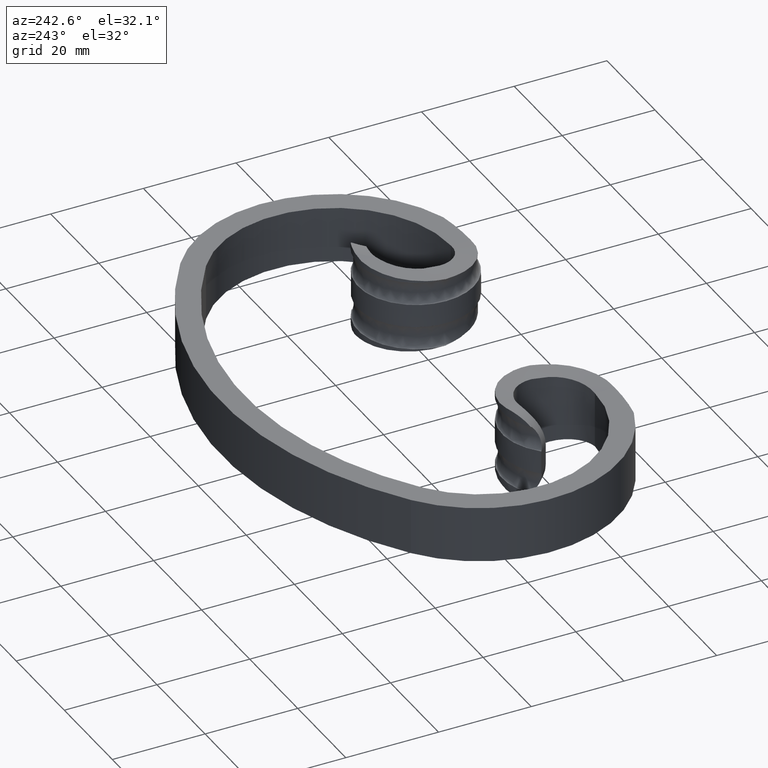
[diagram: clean part render]
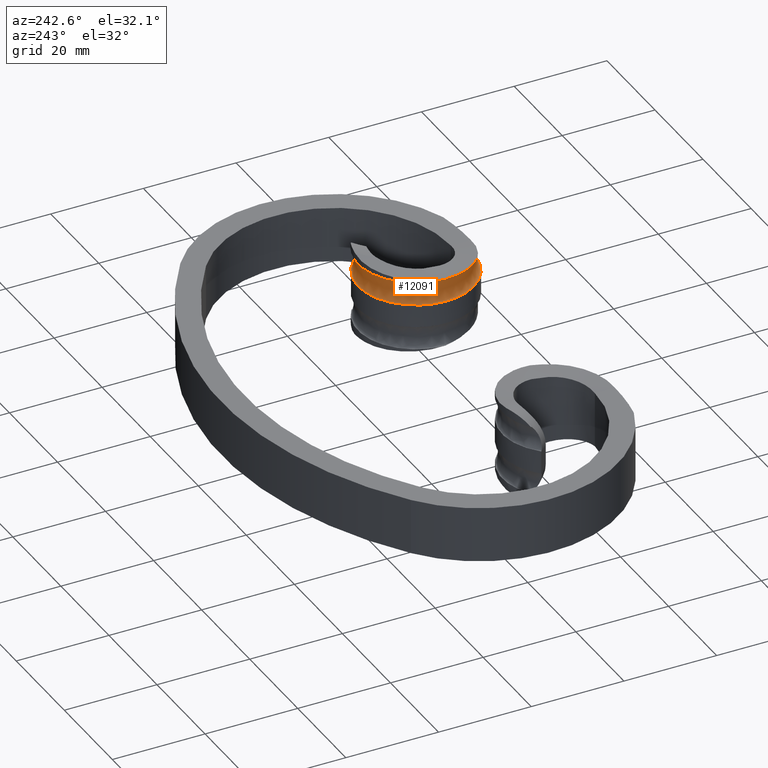
[diagram: same view with one face highlighted and labeled with its STEP entity id]
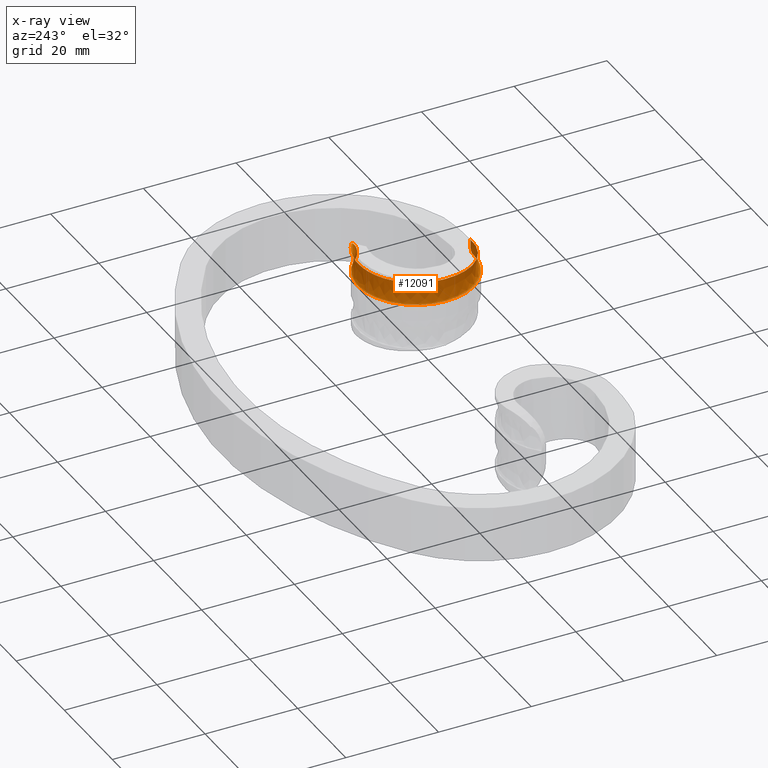
[diagram: x-ray of the same camera — body ghosted, the highlighted face saturated]
A machine part, auxiliary view. The second image highlights one B-rep face of the part: STEP entity #12091.
The next image is the same camera in x-ray: the body ghosted, the highlighted face saturated — about 0% of this face is hidden behind the body in this view.
In plain terms, the highlighted face is a freeform B-spline surface patch.
Its self-contained STEP definition (entity closure, byte-faithful):
#32 = CARTESIAN_POINT ( 'NONE',  ( 38.41920902640650581, -15.30948046978020827, 7.499999999999996447 ) ) ;
#52 = CARTESIAN_POINT ( 'NONE',  ( 38.14622152760183837, -15.06842391478881993, 2.500000000000001332 ) ) ;
#89 = CARTESIAN_POINT ( 'NONE',  ( 35.21141932246656125, -12.77744201039837613, 2.500000000000001332 ) ) ;
#91 = CARTESIAN_POINT ( 'NONE',  ( 33.37332900419551152, -8.814161855558658942, 7.500000000000006217 ) ) ;
#109 = CARTESIAN_POINT ( 'NONE',  ( 21.32860073688358682, -31.54682436965066472, 2.500000000000005773 ) ) ;
#142 = CARTESIAN_POINT ( 'NONE',  ( 35.18553422939550757, -11.08771656686601759, 7.500000000000001776 ) ) ;
#193 = CARTESIAN_POINT ( 'NONE',  ( 29.05313652752883158, -8.495860307255902910, 7.500000000000006217 ) ) ;
#239 = CARTESIAN_POINT ( 'NONE',  ( 36.02249857823497337, -11.51155021889983665, 7.500000000000001776 ) ) ;
#291 = CARTESIAN_POINT ( 'NONE',  ( 23.65607561865076036, -33.31722239589347367, 7.500000000000001776 ) ) ;
#333 = CARTESIAN_POINT ( 'NONE',  ( 16.10877146973381713, -24.50440747149691845, 7.500000000000006217 ) ) ;
#336 = CARTESIAN_POINT ( 'NONE',  ( 21.94561007754839466, -12.92224216963278138, 7.500000000755926877 ) ) ;
#391 = CARTESIAN_POINT ( 'NONE',  ( 16.62160407204991230, -18.25470029576864306, 2.500000000000009770 ) ) ;
#417 = CARTESIAN_POINT ( 'NONE',  ( 38.53905556756766515, -14.13880037893996366, 3.279253250524768237 ) ) ;
#440 = CARTESIAN_POINT ( 'NONE',  ( 21.86280024817728673, -33.94279313599651005, 2.500000000000009770 ) ) ;
#442 = CARTESIAN_POINT ( 'NONE',  ( 18.12853473525423453, -18.54627177066897659, 7.499999985115494816 ) ) ;
#489 = CARTESIAN_POINT ( 'NONE',  ( 18.09419209871169798, -18.55717586293394206, 2.500000022971900826 ) ) ;
#499 = CARTESIAN_POINT ( 'NONE',  ( 23.11864111962347579, -10.27320869311665774, 2.500000000000009770 ) ) ;
#551 = CARTESIAN_POINT ( 'NONE',  ( 19.77008966083842978, -26.63511795071257637, 7.499999999999996447 ) ) ;
#554 = CARTESIAN_POINT ( 'NONE',  ( 27.80448399603576703, -36.33185303286985146, 7.500000000000006217 ) ) ;
#600 = CARTESIAN_POINT ( 'NONE',  ( 17.89905848581266667, -25.67404979609122151, 2.499999999623299995 ) ) ;
#609 = CARTESIAN_POINT ( 'NONE',  ( 19.18525494613443527, -16.14910606491155676, 2.500000000000005773 ) ) ;
#631 = CARTESIAN_POINT ( 'NONE',  ( 17.63591395872200707, -22.96605085467229657, 7.464027147455925437 ) ) ;
#649 = CARTESIAN_POINT ( 'NONE',  ( 24.53156503241426734, -33.75231059033578873, 2.499999994784080304 ) ) ;
#661 = CARTESIAN_POINT ( 'NONE',  ( 35.18553422939552178, -11.08771656686680984, 2.500000000000005773 ) ) ;
#687 = CARTESIAN_POINT ( 'NONE',  ( 29.20734133652713638, -34.31818550070126861, 6.063039857513026654 ) ) ;
#702 = CARTESIAN_POINT ( 'NONE',  ( 35.66985910264742188, -11.34902509100770018, 2.500001718754357949 ) ) ;
#712 = CARTESIAN_POINT ( 'NONE',  ( 37.19806039891240346, -12.26979295539505621, 2.500000000000005773 ) ) ;
#715 = CARTESIAN_POINT ( 'NONE',  ( 37.12918128107770599, -12.22680497749369266, 7.499989036163373868 ) ) ;
#827 = CARTESIAN_POINT ( 'NONE',  ( 39.47603676172687415, -14.24494880356694715, 2.500000000000005773 ) ) ;
#1127 = CARTESIAN_POINT ( 'NONE',  ( 28.03939288901910842, -33.33340490741996121, 2.500000000000001332 ) ) ;
#1191 = CARTESIAN_POINT ( 'NONE',  ( 19.00497277699126641, -23.41802197244923889, 7.499999999999996447 ) ) ;
#1212 = EDGE_CURVE ( 'NONE', #11409, #15979, #16007, .T. ) ;
#1251 = CARTESIAN_POINT ( 'NONE',  ( 28.44423692930578440, -33.39875460711265731, 2.500000000000001332 ) ) ;
#1269 = CARTESIAN_POINT ( 'NONE',  ( 17.50074889960704638, -23.43622383549060118, 2.500000000000005773 ) ) ;
#1303 = CARTESIAN_POINT ( 'NONE',  ( 32.48445153610369118, -11.70158185510717708, 7.499999999999996447 ) ) ;
#1325 = CARTESIAN_POINT ( 'NONE',  ( 17.60765207413815503, -24.37739225783802510, 2.500000000000005773 ) ) ;
#1361 = CARTESIAN_POINT ( 'NONE',  ( 19.10653267854253201, -24.25037704417913176, 7.499999999999996447 ) ) ;
#1365 = CARTESIAN_POINT ( 'NONE',  ( 39.47603676172685994, -14.24494880356695781, 7.500000000000001776 ) ) ;
#1379 = CARTESIAN_POINT ( 'NONE',  ( 25.40806221898915851, -10.83636635586924335, 2.500000000000005773 ) ) ;
#1418 = CARTESIAN_POINT ( 'NONE',  ( 40.78323529348111975, -13.39474440866036886, 7.500000000000006217 ) ) ;
#1446 = VERTEX_POINT ( 'NONE', #8817 ) ;
#1469 = CARTESIAN_POINT ( 'NONE',  ( 17.50074889960706059, -23.43622383549385546, 7.500000000000001776 ) ) ;
#1524 = CARTESIAN_POINT ( 'NONE',  ( 40.53286449704720695, -13.18041713735370912, 7.500000000000006217 ) ) ;
#1581 = CARTESIAN_POINT ( 'NONE',  ( 23.77808003668876324, -11.62438683739830125, 7.500000000000001776 ) ) ;
#1587 =( BOUNDED_SURFACE ( )  B_SPLINE_SURFACE ( 3, 3, ( 
 ( #10070, #2454, #14996, #11338, #12640, #15182, #8615, #14018, #7726, #5191, #15353, #6409, #14131, #15398, #1379, #12867, #8964, #7604, #7793, #3875, #3927, #6353, #2679, #16498, #6468, #1269, #1325, #15244, #5135, #12815, #14077, #7668, #109, #9020, #8907, #10190, #11578, #10299, #11456, #2566, #3820, #12762 ),
 ( #15294, #5078, #52, #10246, #2627, #11512, #11258, #89, #7463, #16423, #10113, #3625, #12800, #8944, #10171, #4890, #13948, #2494, #10055, #2436, #7648, #5009, #2548, #11441, #16363, #8774, #15100, #5061, #3801, #15164, #13886, #11380, #14059, #15278, #16479, #7585, #3747, #1127, #1251, #6388, #12682, #12742 ),
 ( #12564, #32, #11316, #13831, #8889, #9002, #3684, #12624, #14002, #1303, #4952, #6333, #2610, #6153, #3859, #6274, #10229, #15226, #11499, #5117, #6219, #7523, #15336, #8833, #7709, #1191, #1361, #2372, #551, #16280, #10315, #7073, #14352, #8776, #2871, #13004, #10333, #13060, #12954, #2666, #7878, #10435 ),
 ( #6496, #1365, #2767, #15488, #7777, #4019, #15437, #239, #142, #4120, #2721, #15384, #7825, #10289, #3969, #1581, #11772, #14115, #5284, #14226, #9115, #9063, #2822, #11561, #11664, #1469, #11612, #11713, #4072, #6607, #5335, #15544, #3916, #10380, #291, #10481, #12854, #6553, #7713, #14277, #12904, #9169 ),
 ( #1418, #1524, #5179, #7928, #9224, #5389, #6392, #15339, #6454, #91, #5228, #193, #14173, #9007, #1851, #9280, #13260, #4273, #8202, #1745, #8040, #10747, #6782, #6837, #9499, #12040, #333, #11874, #3020, #10529, #5545, #6664, #6892, #5599, #10687, #6724, #3075, #5489, #554, #14485, #15753, #13317 ),
 ( #15592, #1634, #3127, #1695, #1803, #11981, #8150, #7986, #4374, #2917, #4224, #14430, #11824, #14324, #4326, #499, #4175, #9390, #15697, #5438, #13106, #13207, #391, #14375, #15646, #13157, #9336, #10581, #2968, #9440, #8098, #14537, #15809, #440, #10639, #11930, #16050, #5756, #15848, #4647, #2016, #7155 ),
 ( #6947, #827, #9546, #13424, #9756, #9651, #712, #10901, #661, #4536, #3284, #5654, #2122, #16001, #15950, #8257, #14588, #3393, #4482, #14688, #609, #1904, #11008, #9597, #9701, #2068, #5808, #10795, #12309, #3179, #3232, #7047, #12090, #8474, #12256, #13471, #4434, #12200, #8360, #13368, #5706, #10955 ) ),
 .UNSPECIFIED., .T., .F., .T. ) 
 B_SPLINE_SURFACE_WITH_KNOTS ( ( 4, 3, 4 ),
 ( 4, 2, 2, 2, 2, 2, 2, 2, 2, 2, 2, 2, 2, 2, 2, 2, 2, 2, 2, 2, 4 ),
 ( 0.000000000000000000, 0.5000000000000000000, 1.000000000000000000 ),
 ( 0.000000000000000000, 0.01273185411757188183, 0.03072593135436971212, 0.04872000859116754068, 0.08487915861102858506, 0.1419138687499011953, 0.1781394512699913668, 0.2140461925043029290, 0.2471421102715926632, 0.2815892737302778670, 0.3189275007378699622, 0.3534319911821827698, 0.3875986615000148183, 0.4214799009710058497, 0.4554698563386933574, 0.4871461004091119373, 0.5206264397081099560, 0.5573198910170400477, 0.5917772430613232881, 0.6090450569411511861, 0.6263128708209791951 ),
 .UNSPECIFIED. ) 
 GEOMETRIC_REPRESENTATION_ITEM ( )  RATIONAL_B_SPLINE_SURFACE ( (
 ( 1.000000000000000000, 1.000000000000000000, 1.000000000000000000, 1.000000000000000000, 1.000000000000000000, 1.000000000000000000, 1.000000000000000000, 1.000000000000000000, 1.000000000000000000, 1.000000000000000000, 1.000000000000000000, 1.000000000000000000, 1.000000000000000000, 1.000000000000000000, 1.000000000000000000, 1.000000000000000000, 1.000000000000000000, 1.000000000000000000, 1.000000000000000000, 1.000000000000000000, 1.000000000000000000, 1.000000000000000000, 1.000000000000000000, 1.000000000000000000, 1.000000000000000000, 1.000000000000000000, 1.000000000000000000, 1.000000000000000000, 1.000000000000000000, 1.000000000000000000, 1.000000000000000000, 1.000000000000000000, 1.000000000000000000, 1.000000000000000000, 1.000000000000000000, 1.000000000000000000, 1.000000000000000000, 1.000000000000000000, 1.000000000000000000, 1.000000000000000000, 1.000000000000000000, 1.000000000000000000),
 ( 0.3333333333333333703, 0.3333333333333333703, 0.3333333333333333703, 0.3333333333333333703, 0.3333333333333333703, 0.3333333333333333703, 0.3333333333333333703, 0.3333333333333333703, 0.3333333333333333703, 0.3333333333333333703, 0.3333333333333333703, 0.3333333333333333703, 0.3333333333333333703, 0.3333333333333333703, 0.3333333333333333703, 0.3333333333333333703, 0.3333333333333333703, 0.3333333333333333703, 0.3333333333333333703, 0.3333333333333333703, 0.3333333333333333703, 0.3333333333333333703, 0.3333333333333333703, 0.3333333333333333703, 0.3333333333333333703, 0.3333333333333333703, 0.3333333333333333703, 0.3333333333333333703, 0.3333333333333333703, 0.3333333333333333703, 0.3333333333333333703, 0.3333333333333333703, 0.3333333333333333703, 0.3333333333333333703, 0.3333333333333333703, 0.3333333333333333703, 0.3333333333333333703, 0.3333333333333333703, 0.3333333333333333703, 0.3333333333333333703, 0.3333333333333333703, 0.3333333333333333703),
 ( 0.3333333333333333703, 0.3333333333333333703, 0.3333333333333333703, 0.3333333333333333703, 0.3333333333333333703, 0.3333333333333333703, 0.3333333333333333703, 0.3333333333333333703, 0.3333333333333333703, 0.3333333333333333703, 0.3333333333333333703, 0.3333333333333333703, 0.3333333333333333703, 0.3333333333333333703, 0.3333333333333333703, 0.3333333333333333703, 0.3333333333333333703, 0.3333333333333333703, 0.3333333333333333703, 0.3333333333333333703, 0.3333333333333333703, 0.3333333333333333703, 0.3333333333333333703, 0.3333333333333333703, 0.3333333333333333703, 0.3333333333333333703, 0.3333333333333333703, 0.3333333333333333703, 0.3333333333333333703, 0.3333333333333333703, 0.3333333333333333703, 0.3333333333333333703, 0.3333333333333333703, 0.3333333333333333703, 0.3333333333333333703, 0.3333333333333333703, 0.3333333333333333703, 0.3333333333333333703, 0.3333333333333333703, 0.3333333333333333703, 0.3333333333333333703, 0.3333333333333333703),
 ( 1.000000000000000000, 1.000000000000000000, 1.000000000000000000, 1.000000000000000000, 1.000000000000000000, 1.000000000000000000, 1.000000000000000000, 1.000000000000000000, 1.000000000000000000, 1.000000000000000000, 1.000000000000000000, 1.000000000000000000, 1.000000000000000000, 1.000000000000000000, 1.000000000000000000, 1.000000000000000000, 1.000000000000000000, 1.000000000000000000, 1.000000000000000000, 1.000000000000000000, 1.000000000000000000, 1.000000000000000000, 1.000000000000000000, 1.000000000000000000, 1.000000000000000000, 1.000000000000000000, 1.000000000000000000, 1.000000000000000000, 1.000000000000000000, 1.000000000000000000, 1.000000000000000000, 1.000000000000000000, 1.000000000000000000, 1.000000000000000000, 1.000000000000000000, 1.000000000000000000, 1.000000000000000000, 1.000000000000000000, 1.000000000000000000, 1.000000000000000000, 1.000000000000000000, 1.000000000000000000),
 ( 0.3333333333333333703, 0.3333333333333333703, 0.3333333333333333703, 0.3333333333333333703, 0.3333333333333333703, 0.3333333333333333703, 0.3333333333333333703, 0.3333333333333333703, 0.3333333333333333703, 0.3333333333333333703, 0.3333333333333333703, 0.3333333333333333703, 0.3333333333333333703, 0.3333333333333333703, 0.3333333333333333703, 0.3333333333333333703, 0.3333333333333333703, 0.3333333333333333703, 0.3333333333333333703, 0.3333333333333333703, 0.3333333333333333703, 0.3333333333333333703, 0.3333333333333333703, 0.3333333333333333703, 0.3333333333333333703, 0.3333333333333333703, 0.3333333333333333703, 0.3333333333333333703, 0.3333333333333333703, 0.3333333333333333703, 0.3333333333333333703, 0.3333333333333333703, 0.3333333333333333703, 0.3333333333333333703, 0.3333333333333333703, 0.3333333333333333703, 0.3333333333333333703, 0.3333333333333333703, 0.3333333333333333703, 0.3333333333333333703, 0.3333333333333333703, 0.3333333333333333703),
 ( 0.3333333333333333703, 0.3333333333333333703, 0.3333333333333333703, 0.3333333333333333703, 0.3333333333333333703, 0.3333333333333333703, 0.3333333333333333703, 0.3333333333333333703, 0.3333333333333333703, 0.3333333333333333703, 0.3333333333333333703, 0.3333333333333333703, 0.3333333333333333703, 0.3333333333333333703, 0.3333333333333333703, 0.3333333333333333703, 0.3333333333333333703, 0.3333333333333333703, 0.3333333333333333703, 0.3333333333333333703, 0.3333333333333333703, 0.3333333333333333703, 0.3333333333333333703, 0.3333333333333333703, 0.3333333333333333703, 0.3333333333333333703, 0.3333333333333333703, 0.3333333333333333703, 0.3333333333333333703, 0.3333333333333333703, 0.3333333333333333703, 0.3333333333333333703, 0.3333333333333333703, 0.3333333333333333703, 0.3333333333333333703, 0.3333333333333333703, 0.3333333333333333703, 0.3333333333333333703, 0.3333333333333333703, 0.3333333333333333703, 0.3333333333333333703, 0.3333333333333333703),
 ( 1.000000000000000000, 1.000000000000000000, 1.000000000000000000, 1.000000000000000000, 1.000000000000000000, 1.000000000000000000, 1.000000000000000000, 1.000000000000000000, 1.000000000000000000, 1.000000000000000000, 1.000000000000000000, 1.000000000000000000, 1.000000000000000000, 1.000000000000000000, 1.000000000000000000, 1.000000000000000000, 1.000000000000000000, 1.000000000000000000, 1.000000000000000000, 1.000000000000000000, 1.000000000000000000, 1.000000000000000000, 1.000000000000000000, 1.000000000000000000, 1.000000000000000000, 1.000000000000000000, 1.000000000000000000, 1.000000000000000000, 1.000000000000000000, 1.000000000000000000, 1.000000000000000000, 1.000000000000000000, 1.000000000000000000, 1.000000000000000000, 1.000000000000000000, 1.000000000000000000, 1.000000000000000000, 1.000000000000000000, 1.000000000000000000, 1.000000000000000000, 1.000000000000000000, 1.000000000000000000) ) ) 
 REPRESENTATION_ITEM ( '' )  SURFACE ( )  );
#1634 = CARTESIAN_POINT ( 'NONE',  ( 40.53286449704722827, -13.18041713735355103, 2.500000000000009770 ) ) ;
#1695 = CARTESIAN_POINT ( 'NONE',  ( 39.71016810445808431, -12.44677613040599518, 2.500000000000009770 ) ) ;
#1724 = CARTESIAN_POINT ( 'NONE',  ( 38.69431948619705253, -14.04456221934563764, 2.812781095735301662 ) ) ;
#1745 = CARTESIAN_POINT ( 'NONE',  ( 18.56009526369910745, -14.35968709768496332, 7.500000000000006217 ) ) ;
#1792 = CARTESIAN_POINT ( 'NONE',  ( 21.18831554561096198, -31.37847757325452847, 2.500000065520436188 ) ) ;
#1803 = CARTESIAN_POINT ( 'NONE',  ( 39.35998797951828720, -12.11516343703750920, 2.500000000000009770 ) ) ;
#1838 = CARTESIAN_POINT ( 'NONE',  ( 18.92579126440170967, -16.67808096403079432, 2.499999992731118947 ) ) ;
#1851 = CARTESIAN_POINT ( 'NONE',  ( 24.94696623297835458, -9.404654352995869715, 7.500000000000006217 ) ) ;
#1855 = CARTESIAN_POINT ( 'NONE',  ( 26.43491285794516443, -10.50456793412688228, 7.499999999468269785 ) ) ;
#1877 = CARTESIAN_POINT ( 'NONE',  ( 28.42137027010524619, -34.25059370786034663, 6.127003454747098843 ) ) ;
#1896 = CARTESIAN_POINT ( 'NONE',  ( 38.21120117477982348, -13.09211234946844193, 2.499998902005455825 ) ) ;
#1904 = CARTESIAN_POINT ( 'NONE',  ( 18.33888219529982067, -17.90031393025098438, 2.500000000000005773 ) ) ;
#1929 = CARTESIAN_POINT ( 'NONE',  ( 17.61926032209246173, -22.86842585859914223, 7.471599695792774831 ) ) ;
#1950 = CARTESIAN_POINT ( 'NONE',  ( 28.97219955448822404, -34.96618928236238588, 2.499999999999737987 ) ) ;
#2006 = CARTESIAN_POINT ( 'NONE',  ( 19.72994886740338671, -15.35732413793948226, 2.500000039846946187 ) ) ;
#2012 = CARTESIAN_POINT ( 'NONE',  ( 30.04711231172892738, -34.31423004579989566, 6.000000000000002665 ) ) ;
#2016 = CARTESIAN_POINT ( 'NONE',  ( 29.38748622901768215, -36.49227055416643850, 2.500000000000009770 ) ) ;
#2068 = CARTESIAN_POINT ( 'NONE',  ( 17.50074889960704638, -23.43622383549060118, 2.500000000000005773 ) ) ;
#2122 = CARTESIAN_POINT ( 'NONE',  ( 28.12831602485360349, -10.10364475599091350, 2.500000000000005773 ) ) ;
#2211 = CARTESIAN_POINT ( 'NONE',  ( 17.51258348519467489, -22.49999999999997868, 7.500000000000002665 ) ) ;
#2372 = CARTESIAN_POINT ( 'NONE',  ( 19.48787910873021190, -25.85562541432279815, 7.499999999999996447 ) ) ;
#2436 = CARTESIAN_POINT ( 'NONE',  ( 20.90735288962349614, -16.24302945072337323, 2.500000000000001332 ) ) ;
#2454 = CARTESIAN_POINT ( 'NONE',  ( 39.47603676172687415, -14.24494880356694715, 2.500000000000005773 ) ) ;
#2494 = CARTESIAN_POINT ( 'NONE',  ( 22.54926091258116472, -14.36132657342905183, 2.500000000000001332 ) ) ;
#2496 = EDGE_CURVE ( 'NONE', #7531, #1446, #15653, .T. ) ;
#2548 = CARTESIAN_POINT ( 'NONE',  ( 19.43224197536309461, -19.32725261766584168, 2.500000000000001332 ) ) ;
#2566 = CARTESIAN_POINT ( 'NONE',  ( 29.05399269329276279, -34.97089452839851020, 2.500000000000005773 ) ) ;
#2610 = CARTESIAN_POINT ( 'NONE',  ( 28.25403474967046336, -11.60281937849431522, 7.499999999999996447 ) ) ;
#2627 = CARTESIAN_POINT ( 'NONE',  ( 37.19786079592471140, -14.19704721203561171, 2.500000000000001332 ) ) ;
#2666 = CARTESIAN_POINT ( 'NONE',  ( 29.26448823489879558, -33.48469831830663423, 7.499999999999996447 ) ) ;
#2679 = CARTESIAN_POINT ( 'NONE',  ( 18.02692302370650168, -18.79097645671723882, 2.500000000000005773 ) ) ;
#2721 = CARTESIAN_POINT ( 'NONE',  ( 31.46806569686472344, -10.00009628966603081, 7.500000000000001776 ) ) ;
#2767 = CARTESIAN_POINT ( 'NONE',  ( 39.21234713257015869, -14.01316164514706131, 7.500000000000001776 ) ) ;
#2822 = CARTESIAN_POINT ( 'NONE',  ( 18.02692302370488164, -18.79097645672052508, 7.500000000000001776 ) ) ;
#2871 = CARTESIAN_POINT ( 'NONE',  ( 24.50162879342335387, -32.07218748877694736, 7.499999999999996447 ) ) ;
#2917 = CARTESIAN_POINT ( 'NONE',  ( 33.37332900420063453, -8.814161855558003467, 2.500000000000009770 ) ) ;
#2968 = CARTESIAN_POINT ( 'NONE',  ( 16.90674673392690863, -27.55771080284837282, 2.500000000000009770 ) ) ;
#2999 = CARTESIAN_POINT ( 'NONE',  ( 38.92087343659828491, -13.83587487022201223, 2.500000000000006217 ) ) ;
#3020 = CARTESIAN_POINT ( 'NONE',  ( 16.90674673392691574, -27.55771080284918284, 7.500000000000006217 ) ) ;
#3067 = CARTESIAN_POINT ( 'NONE',  ( 27.95254882945457453, -34.83990304430039942, 2.500000000000307310 ) ) ;
#3075 = CARTESIAN_POINT ( 'NONE',  ( 25.76580782789493540, -35.88074365128134247, 7.500000000000006217 ) ) ;
#3120 = CARTESIAN_POINT ( 'NONE',  ( 36.78195914027642743, -11.99855543618123832, 2.499999973767126793 ) ) ;
#3127 = CARTESIAN_POINT ( 'NONE',  ( 40.27847273753850743, -12.95789937550528492, 2.500000000000009770 ) ) ;
#3130 = CARTESIAN_POINT ( 'NONE',  ( 34.87367840477424608, -10.97441121167543088, 7.499999999828729891 ) ) ;
#3168 = CARTESIAN_POINT ( 'NONE',  ( 24.29773320807800374, -11.36544918635430967, 2.499999999966835862 ) ) ;
#3179 = CARTESIAN_POINT ( 'NONE',  ( 19.12712496699650444, -28.72640338397117077, 2.500000000000005773 ) ) ;
#3183 = CARTESIAN_POINT ( 'NONE',  ( 29.83445047028817143, -9.988011969830873582, 7.500000002750227601 ) ) ;
#3217 = CARTESIAN_POINT ( 'NONE',  ( 38.96694933718355713, -13.79116450565392249, 2.500000000000006661 ) ) ;
#3228 = CARTESIAN_POINT ( 'NONE',  ( 30.01567626226326979, -34.31414699491300979, 5.999999999999999112 ) ) ;
#3232 = CARTESIAN_POINT ( 'NONE',  ( 19.58971036994750037, -29.47444745300611046, 2.500000000000005773 ) ) ;
#3258 = CARTESIAN_POINT ( 'NONE',  ( 30.00000000000002132, -34.31406559033229087, 6.000000000000000000 ) ) ;
#3275 = CARTESIAN_POINT ( 'NONE',  ( 17.60144876365123423, -24.16032602887177561, 2.500000047059125929 ) ) ;
#3284 = CARTESIAN_POINT ( 'NONE',  ( 31.46806569686472344, -10.00009628966346398, 2.500000000000005773 ) ) ;
#3306 = CARTESIAN_POINT ( 'NONE',  ( 26.11102636311287029, -33.73457141058233333, 6.318299289609039526 ) ) ;
#3338 = CARTESIAN_POINT ( 'NONE',  ( 35.39662568447331381, -11.21088919615156954, 7.499998366613689349 ) ) ;
#3363 = CARTESIAN_POINT ( 'NONE',  ( 19.48689963748913812, -28.44602269144351681, 7.008696456641418493 ) ) ;
#3393 = CARTESIAN_POINT ( 'NONE',  ( 21.61655481322094374, -13.18131105506792622, 2.500000000000005773 ) ) ;
#3587 = CARTESIAN_POINT ( 'NONE',  ( 37.28329701670509877, -12.52287169289031787, 7.454983653631728657 ) ) ;
#3625 = CARTESIAN_POINT ( 'NONE',  ( 29.08198031913861570, -11.50401737602942198, 2.500000000000001332 ) ) ;
#3684 = CARTESIAN_POINT ( 'NONE',  ( 36.26465247424160765, -13.44508363411256902, 7.499999999999996447 ) ) ;
#3747 = CARTESIAN_POINT ( 'NONE',  ( 26.83574524456478372, -33.06918005922614867, 2.500000000000001332 ) ) ;
#3801 = CARTESIAN_POINT ( 'NONE',  ( 19.77008966083841912, -26.63511795071014276, 2.500000000000001332 ) ) ;
#3820 = CARTESIAN_POINT ( 'NONE',  ( 29.52398102155498094, -34.99811214160532558, 2.500000000000005773 ) ) ;
#3859 = CARTESIAN_POINT ( 'NONE',  ( 25.86915820499998020, -12.26807835873938046, 7.499999999999996447 ) ) ;
#3875 = CARTESIAN_POINT ( 'NONE',  ( 19.73372407666129291, -15.30135827420416916, 2.500000000000005773 ) ) ;
#3916 = CARTESIAN_POINT ( 'NONE',  ( 21.32860073688359748, -31.54682436965065051, 7.500000000000001776 ) ) ;
#3927 = CARTESIAN_POINT ( 'NONE',  ( 19.18525494613443527, -16.14910606491155676, 2.500000000000005773 ) ) ;
#3933 = FACE_OUTER_BOUND ( 'NONE', #16129, .T. ) ;
#3969 = CARTESIAN_POINT ( 'NONE',  ( 25.40806221898916206, -10.83636635586762687, 7.500000000000001776 ) ) ;
#4019 = CARTESIAN_POINT ( 'NONE',  ( 37.57030407590158205, -12.54947938865291412, 7.500000000000001776 ) ) ;
#4024 = ORIENTED_EDGE ( 'NONE', *, *, #7991, .T. ) ;
#4072 = CARTESIAN_POINT ( 'NONE',  ( 18.33841819738267986, -27.09641437678088494, 7.500000000000001776 ) ) ;
#4120 = CARTESIAN_POINT ( 'NONE',  ( 32.92889027014960845, -10.25787185533291535, 7.500000000000001776 ) ) ;
#4175 = CARTESIAN_POINT ( 'NONE',  ( 22.27906043452842511, -10.78243868297078656, 2.500000000000009770 ) ) ;
#4202 = CARTESIAN_POINT ( 'NONE',  ( 38.77585976069036633, -13.97340888724131425, 2.656231044897492399 ) ) ;
#4224 = CARTESIAN_POINT ( 'NONE',  ( 31.74041467732851629, -8.514595397399922660, 2.500000000000009770 ) ) ;
#4273 = CARTESIAN_POINT ( 'NONE',  ( 20.68384871386072987, -12.00129553670998206, 7.500000000000006217 ) ) ;
#4314 = CARTESIAN_POINT ( 'NONE',  ( 36.99760465579314683, -12.13867929829270054, 2.499999466456976904 ) ) ;
#4326 = CARTESIAN_POINT ( 'NONE',  ( 24.94696623297916460, -9.404654352997489752, 2.500000000000009770 ) ) ;
#4367 = CARTESIAN_POINT ( 'NONE',  ( 37.62011682865434636, -12.59652629089946707, 2.500000680204034431 ) ) ;
#4374 = CARTESIAN_POINT ( 'NONE',  ( 35.89648585841128181, -9.762069868856013244, 2.500000000000009770 ) ) ;
#4425 = CARTESIAN_POINT ( 'NONE',  ( 18.55223394646874624, -27.62295591593095523, 2.500000066268732279 ) ) ;
#4434 = CARTESIAN_POINT ( 'NONE',  ( 26.30077653622905132, -34.47496185525213264, 2.500000000000005773 ) ) ;
#4435 = CARTESIAN_POINT ( 'NONE',  ( 26.99156776056288010, -10.35220994611657552, 7.500000001265274996 ) ) ;
#4475 = CARTESIAN_POINT ( 'NONE',  ( 17.52195234949621394, -21.59345409719409048, 2.500000005963685101 ) ) ;
#4482 = CARTESIAN_POINT ( 'NONE',  ( 20.95543806386548624, -13.82316241234659770, 2.500000000000005773 ) ) ;
#4510 = CARTESIAN_POINT ( 'NONE',  ( 24.66720608073268650, -33.13320784480848147, 6.443857454250760952 ) ) ;
#4536 = CARTESIAN_POINT ( 'NONE',  ( 32.92889027014962267, -10.25787185533162571, 2.500000000000005773 ) ) ;
#4593 = CARTESIAN_POINT ( 'NONE',  ( 33.25898072233015057, -10.37660341252162866, 7.500000000336505934 ) ) ;
#4647 = CARTESIAN_POINT ( 'NONE',  ( 28.84349715168997008, -36.45709073849197068, 2.500000000000009770 ) ) ;
#4826 = CARTESIAN_POINT ( 'NONE',  ( 30.04104851945345800, -34.40249501091037843, 2.500000000000003997 ) ) ;
#4890 = CARTESIAN_POINT ( 'NONE',  ( 24.43751895375404715, -12.97556498167688943, 2.500000000000001332 ) ) ;
#4903 = CARTESIAN_POINT ( 'NONE',  ( 17.52129356851960296, -22.51198479162003707, 7.499083118262223735 ) ) ;
#4952 = CARTESIAN_POINT ( 'NONE',  ( 31.19571671640601451, -11.48559718193021695, 7.499999999999996447 ) ) ;
#5009 = CARTESIAN_POINT ( 'NONE',  ( 19.70094359973482412, -18.53902708544617894, 2.500000000000001332 ) ) ;
#5032 =( BOUNDED_CURVE ( )  B_SPLINE_CURVE ( 3, ( #5804, #3228, #5913, #2012 ),
 .UNSPECIFIED., .F., .T. ) 
 B_SPLINE_CURVE_WITH_KNOTS ( ( 4, 4 ),
 ( 6.938893903907228378E-18, 4.711259876130408000E-05 ),
 .UNSPECIFIED. ) 
 CURVE ( )  GEOMETRIC_REPRESENTATION_ITEM ( )  RATIONAL_B_SPLINE_CURVE ( ( 0.5217803813051999917, 0.5217803813051999917, 0.5217803813051999917, 0.5217803813051999917 ) ) 
 REPRESENTATION_ITEM ( '' )  );
#5061 = CARTESIAN_POINT ( 'NONE',  ( 19.48787910872612272, -25.85562541432442529, 2.500000000000001332 ) ) ;
#5078 = CARTESIAN_POINT ( 'NONE',  ( 38.41920902640652713, -15.30948046978034860, 2.500000000000001332 ) ) ;
#5117 = CARTESIAN_POINT ( 'NONE',  ( 20.90735288962350324, -16.24302945072338744, 7.499999999999996447 ) ) ;
#5135 = CARTESIAN_POINT ( 'NONE',  ( 18.33841819738265855, -27.09641437677926135, 2.500000000000005773 ) ) ;
#5179 = CARTESIAN_POINT ( 'NONE',  ( 40.27847273753849322, -12.95789937550529558, 7.500000000000006217 ) ) ;
#5191 = CARTESIAN_POINT ( 'NONE',  ( 32.92889027014962267, -10.25787185533162571, 2.500000000000005773 ) ) ;
#5228 = CARTESIAN_POINT ( 'NONE',  ( 31.74041467732342170, -8.514595397401846455, 7.500000000000006217 ) ) ;
#5284 = CARTESIAN_POINT ( 'NONE',  ( 20.95543806386550045, -13.82316241234661192, 7.500000000000001776 ) ) ;
#5335 = CARTESIAN_POINT ( 'NONE',  ( 19.58971036994449832, -29.47444745300760971, 7.500000000000001776 ) ) ;
#5383 = CARTESIAN_POINT ( 'NONE',  ( 38.58531895183962490, -13.44592564653456179, 2.500000000000006661 ) ) ;
#5389 = CARTESIAN_POINT ( 'NONE',  ( 38.58330654103089330, -11.44219238955007611, 7.500000000000006217 ) ) ;
#5438 = CARTESIAN_POINT ( 'NONE',  ( 18.56009526369909679, -14.35968709768494911, 2.500000000000009770 ) ) ;
#5440 = CARTESIAN_POINT ( 'NONE',  ( 21.10956425181225171, -13.69433125929911732, 7.499999999136917062 ) ) ;
#5468 = CARTESIAN_POINT ( 'NONE',  ( 38.08489786911691510, -14.00350635149753842, 4.946414002459348147 ) ) ;
#5489 = CARTESIAN_POINT ( 'NONE',  ( 27.29004424775603965, -36.24045617210580161, 7.500000000000006217 ) ) ;
#5517 = CARTESIAN_POINT ( 'NONE',  ( 38.28074666191422182, -14.13529916775300066, 4.236053546218343513 ) ) ;
#5545 = CARTESIAN_POINT ( 'NONE',  ( 18.28753359592842287, -30.22676346278174364, 7.500000000000006217 ) ) ;
#5590 = CARTESIAN_POINT ( 'NONE',  ( 30.00000000000000711, -35.00000000000000711, 2.500000000000005773 ) ) ;
#5599 = CARTESIAN_POINT ( 'NONE',  ( 21.86280024817730450, -33.94279313599390235, 7.500000000000006217 ) ) ;
#5646 = CARTESIAN_POINT ( 'NONE',  ( 25.95732801067190110, -34.33841531144719283, 2.500000000965635127 ) ) ;
#5654 = CARTESIAN_POINT ( 'NONE',  ( 29.06755842333210893, -9.999938841643256637, 2.500000000000005773 ) ) ;
#5694 = CARTESIAN_POINT ( 'NONE',  ( 17.50627830788823047, -23.13492792526169595, 2.500000014110377755 ) ) ;
#5706 = CARTESIAN_POINT ( 'NONE',  ( 29.52398102155498094, -34.99811214160532558, 2.500000000000005773 ) ) ;
#5756 = CARTESIAN_POINT ( 'NONE',  ( 27.29004424775684612, -36.24045617210745007, 2.500000000000009770 ) ) ;
#5804 = CARTESIAN_POINT ( 'NONE',  ( 30.00000000000002132, -34.31406559033229087, 6.000000000000000000 ) ) ;
#5808 = CARTESIAN_POINT ( 'NONE',  ( 17.60765207413815503, -24.37739225783802510, 2.500000000000005773 ) ) ;
#5811 = CARTESIAN_POINT ( 'NONE',  ( 37.35980459470660264, -12.39862694124577835, 7.499990137513146138 ) ) ;
#5837 = CARTESIAN_POINT ( 'NONE',  ( 17.68564140450749633, -23.25890370682646591, 7.441249790020598276 ) ) ;
#5867 = CARTESIAN_POINT ( 'NONE',  ( 36.89026405592221636, -12.06809398825163093, 7.500000011223647789 ) ) ;
#5913 = CARTESIAN_POINT ( 'NONE',  ( 30.03137999180284368, -34.31420178705655388, 5.999999999999999112 ) ) ;
#6066 = VERTEX_POINT ( 'NONE', #13028 ) ;
#6113 = CARTESIAN_POINT ( 'NONE',  ( 17.50000000000000355, -22.49999999999998224, 7.500000000000001776 ) ) ;
#6153 = CARTESIAN_POINT ( 'NONE',  ( 26.65075807585148127, -11.98518199567966391, 7.499999999999996447 ) ) ;
#6219 = CARTESIAN_POINT ( 'NONE',  ( 20.42968106670389261, -16.99575871723751774, 7.499999999999996447 ) ) ;
#6274 = CARTESIAN_POINT ( 'NONE',  ( 24.43751895375330108, -12.97556498167841355, 7.499999999999996447 ) ) ;
#6333 = CARTESIAN_POINT ( 'NONE',  ( 29.08198031913537562, -11.50401737602741647, 7.499999999999996447 ) ) ;
#6353 = CARTESIAN_POINT ( 'NONE',  ( 18.33888219529982067, -17.90031393025098438, 2.500000000000005773 ) ) ;
#6388 = CARTESIAN_POINT ( 'NONE',  ( 29.26448823489555195, -33.48469831830502841, 2.500000000000001332 ) ) ;
#6392 = CARTESIAN_POINT ( 'NONE',  ( 38.13146832358317795, -11.09450227667838185, 7.500000000000006217 ) ) ;
#6409 = CARTESIAN_POINT ( 'NONE',  ( 29.06755842333210893, -9.999938841643256637, 2.500000000000005773 ) ) ;
#6454 = CARTESIAN_POINT ( 'NONE',  ( 35.89648585841448636, -9.762069868855622445, 7.500000000000006217 ) ) ;
#6468 = CARTESIAN_POINT ( 'NONE',  ( 17.49924479132482347, -21.55588899254137658, 2.500000000000005773 ) ) ;
#6496 = CARTESIAN_POINT ( 'NONE',  ( 39.73398842150573529, -14.46669636730864106, 7.500000000000001776 ) ) ;
#6553 = CARTESIAN_POINT ( 'NONE',  ( 27.66471856838798615, -34.78693053976206784, 7.500000000000001776 ) ) ;
#6607 = CARTESIAN_POINT ( 'NONE',  ( 19.12712496699652576, -28.72640338396965376, 7.500000000000001776 ) ) ;
#6664 = CARTESIAN_POINT ( 'NONE',  ( 19.50914376405591710, -31.82309187604592537, 7.500000000000006217 ) ) ;
#6668 = CARTESIAN_POINT ( 'NONE',  ( 19.05058927984187989, -16.44175529875763075, 7.499999991271808497 ) ) ;
#6724 = CARTESIAN_POINT ( 'NONE',  ( 24.76956876614016778, -35.52638232582666689, 7.500000000000006217 ) ) ;
#6728 = CARTESIAN_POINT ( 'NONE',  ( 24.83717429876113769, -11.10252134673562985, 7.500000000145170986 ) ) ;
#6757 = CARTESIAN_POINT ( 'NONE',  ( 37.73517634381075680, -13.60643851158547868, 6.061474740719058119 ) ) ;
#6782 = CARTESIAN_POINT ( 'NONE',  ( 16.62160407204747514, -18.25470029577355291, 7.500000000000006217 ) ) ;
#6784 = CARTESIAN_POINT ( 'NONE',  ( 17.50000000000000355, -22.49999999999998224, 7.500000000000001776 ) ) ;
#6808 = CARTESIAN_POINT ( 'NONE',  ( 38.15132630832777494, -14.05842331032990522, 4.711409415087313590 ) ) ;
#6825 = CARTESIAN_POINT ( 'NONE',  ( 36.12514849625573987, -11.59434165828626995, 2.500000086775485908 ) ) ;
#6837 = CARTESIAN_POINT ( 'NONE',  ( 16.13865091681810782, -20.29581837494282937, 7.500000000000006217 ) ) ;
#6881 = CARTESIAN_POINT ( 'NONE',  ( 34.73879234661386306, -10.92103393319889015, 2.499999950242471236 ) ) ;
#6885 = CARTESIAN_POINT ( 'NONE',  ( 30.00000000000000711, -35.00000000000000711, 2.500000000000005773 ) ) ;
#6892 = CARTESIAN_POINT ( 'NONE',  ( 20.21999601227528487, -32.56312349886574964, 7.500000000000006217 ) ) ;
#6933 = CARTESIAN_POINT ( 'NONE',  ( 25.22138978776236229, -10.93859718934428393, 2.500000000042133408 ) ) ;
#6947 = CARTESIAN_POINT ( 'NONE',  ( 39.73398842150574950, -14.46669636730863040, 2.500000000000005773 ) ) ;
#6949 = CARTESIAN_POINT ( 'NONE',  ( 30.41090533511147243, -9.993627061987712779, 7.500000044346131212 ) ) ;
#6966 = CARTESIAN_POINT ( 'NONE',  ( 22.63677109292737910, -31.92170091743153648, 6.633683316053996748 ) ) ;
#6987 = CARTESIAN_POINT ( 'NONE',  ( 29.73106617790173090, -9.960646977675230218, 2.499999951795102149 ) ) ;
#7019 = CARTESIAN_POINT ( 'NONE',  ( 20.38281383386947354, -29.73206907938368460, 6.884252458813118203 ) ) ;
#7035 = CARTESIAN_POINT ( 'NONE',  ( 32.80428937869573502, -10.27505909006194074, 2.500000000389875243 ) ) ;
#7047 = CARTESIAN_POINT ( 'NONE',  ( 20.68678205458044062, -30.88704921089845001, 2.500000000000005773 ) ) ;
#7071 = CARTESIAN_POINT ( 'NONE',  ( 22.02649990739137564, -31.43221498560736649, 6.695890247336429901 ) ) ;
#7073 = CARTESIAN_POINT ( 'NONE',  ( 21.86442034511138033, -29.95100654574778432, 7.499999999999996447 ) ) ;
#7155 = CARTESIAN_POINT ( 'NONE',  ( 29.89719250730371769, -36.49647272592761027, 2.500000000000009770 ) ) ;
#7463 = CARTESIAN_POINT ( 'NONE',  ( 34.47458260037975464, -12.41336326487761355, 2.500000000000001332 ) ) ;
#7523 = CARTESIAN_POINT ( 'NONE',  ( 19.70094359973483478, -18.53902708545104971, 7.499999999999996447 ) ) ;
#7531 = VERTEX_POINT ( 'NONE', #6885 ) ;
#7585 = CARTESIAN_POINT ( 'NONE',  ( 26.04630173621220024, -32.80184250326482953, 2.500000000000001332 ) ) ;
#7602 = CARTESIAN_POINT ( 'NONE',  ( 37.33321774882279698, -12.86713977671646880, 7.146426398912670841 ) ) ;
#7604 = CARTESIAN_POINT ( 'NONE',  ( 21.61655481322094374, -13.18131105506792622, 2.500000000000005773 ) ) ;
#7648 = CARTESIAN_POINT ( 'NONE',  ( 20.42968106670387840, -16.99575871724276155, 2.500000000000001332 ) ) ;
#7668 = CARTESIAN_POINT ( 'NONE',  ( 20.68678205458044062, -30.88704921089845001, 2.500000000000005773 ) ) ;
#7709 = CARTESIAN_POINT ( 'NONE',  ( 18.98885097972755887, -21.76639910134410627, 7.499999999999996447 ) ) ;
#7713 = CARTESIAN_POINT ( 'NONE',  ( 28.12436046266915923, -34.86530381999043016, 7.500000000000001776 ) ) ;
#7726 = CARTESIAN_POINT ( 'NONE',  ( 35.18553422939552178, -11.08771656686680984, 2.500000000000005773 ) ) ;
#7777 = CARTESIAN_POINT ( 'NONE',  ( 38.27892438772149575, -13.15610532453697523, 7.500000000000001776 ) ) ;
#7793 = CARTESIAN_POINT ( 'NONE',  ( 20.95543806386548624, -13.82316241234659770, 2.500000000000005773 ) ) ;
#7825 = CARTESIAN_POINT ( 'NONE',  ( 28.12831602485360349, -10.10364475599093481, 7.500000000000001776 ) ) ;
#7878 = CARTESIAN_POINT ( 'NONE',  ( 29.66047581409229039, -33.50395372904419844, 7.499999999999996447 ) ) ;
#7928 = CARTESIAN_POINT ( 'NONE',  ( 39.71016810445807010, -12.44677613040600583, 7.500000000000006217 ) ) ;
#7986 = CARTESIAN_POINT ( 'NONE',  ( 36.83357783400342100, -10.24565842740289767, 2.500000000000009770 ) ) ;
#7991 = EDGE_CURVE ( 'NONE', #6066, #11409, #13099, .T. ) ;
#8040 = CARTESIAN_POINT ( 'NONE',  ( 17.94082882556500280, -15.30245341257158387, 7.500000000000006217 ) ) ;
#8044 = CARTESIAN_POINT ( 'NONE',  ( 25.35895095707278202, -10.87964908619698434, 7.499999999322837674 ) ) ;
#8073 = CARTESIAN_POINT ( 'NONE',  ( 38.65268428935507927, -14.07557803716067824, 2.926285484596348851 ) ) ;
#8098 = CARTESIAN_POINT ( 'NONE',  ( 18.28753359592992211, -30.22676346278024440, 2.500000000000009770 ) ) ;
#8139 = CARTESIAN_POINT ( 'NONE',  ( 18.04012565542391400, -26.17067152786526663, 2.500000072474158674 ) ) ;
#8150 = CARTESIAN_POINT ( 'NONE',  ( 38.13146832358157212, -11.09450227667796618, 2.500000000000009770 ) ) ;
#8194 = CARTESIAN_POINT ( 'NONE',  ( 23.18627349549347016, -32.99132638240786974, 2.500000002735879523 ) ) ;
#8202 = CARTESIAN_POINT ( 'NONE',  ( 19.93858023396535373, -12.71499137622621234, 7.500000000000006217 ) ) ;
#8248 = CARTESIAN_POINT ( 'NONE',  ( 22.98234537279968492, -12.14237141638561113, 2.500000001468179356 ) ) ;
#8257 = CARTESIAN_POINT ( 'NONE',  ( 23.77808003668875969, -11.62438683739677536, 2.500000000000005773 ) ) ;
#8282 = CARTESIAN_POINT ( 'NONE',  ( 17.71791476993909242, -23.45430243291891159, 7.425970349845224305 ) ) ;
#8298 = CARTESIAN_POINT ( 'NONE',  ( 23.62520040345176042, -33.26412033742130347, 2.500000011216717777 ) ) ;
#8348 = CARTESIAN_POINT ( 'NONE',  ( 23.84981439232580058, -11.60598973342661644, 2.500000001380759951 ) ) ;
#8360 = CARTESIAN_POINT ( 'NONE',  ( 28.12436046267077572, -34.86530381999045147, 2.500000000000005773 ) ) ;
#8436 = ORIENTED_EDGE ( 'NONE', *, *, #15515, .T. ) ;
#8474 = CARTESIAN_POINT ( 'NONE',  ( 22.80531725841389346, -32.76979810080144517, 2.500000000000005773 ) ) ;
#8613 = CARTESIAN_POINT ( 'NONE',  ( 17.55311940681530913, -22.57889160181010624, 7.493947909833972965 ) ) ;
#8615 = CARTESIAN_POINT ( 'NONE',  ( 37.19806039891240346, -12.26979295539505621, 2.500000000000005773 ) ) ;
#8674 = CARTESIAN_POINT ( 'NONE',  ( 37.27243661539316832, -12.60047688837723001, 7.402719401146803158 ) ) ;
#8706 = CARTESIAN_POINT ( 'NONE',  ( 30.00000000000000711, -35.00000000000000711, 2.500000000000005773 ) ) ;
#8732 = CARTESIAN_POINT ( 'NONE',  ( 37.35980459470660264, -12.39862694124577835, 7.499990137513146138 ) ) ;
#8774 = CARTESIAN_POINT ( 'NONE',  ( 19.00497277699043863, -23.41802197244436456, 2.500000000000001332 ) ) ;
#8776 = CARTESIAN_POINT ( 'NONE',  ( 23.74783426865052149, -31.59680306560897378, 7.499999999999996447 ) ) ;
#8789 = CARTESIAN_POINT ( 'NONE',  ( 37.33540957349470091, -12.41878629344564011, 7.500278688206481803 ) ) ;
#8817 = CARTESIAN_POINT ( 'NONE',  ( 30.04711231172893093, -34.31423004579989566, 6.000000000000002665 ) ) ;
#8833 = CARTESIAN_POINT ( 'NONE',  ( 19.07666020911455362, -20.94171308988109459, 7.499999999999996447 ) ) ;
#8889 = CARTESIAN_POINT ( 'NONE',  ( 37.19786079592469008, -14.19704721203582487, 7.499999999999996447 ) ) ;
#8899 = ORIENTED_EDGE ( 'NONE', *, *, #1212, .T. ) ;
#8907 = CARTESIAN_POINT ( 'NONE',  ( 23.65607561865074615, -33.31722239589348789, 2.500000000000005773 ) ) ;
#8944 = CARTESIAN_POINT ( 'NONE',  ( 26.65075807584986123, -11.98518199567883791, 2.500000000000001332 ) ) ;
#8964 = CARTESIAN_POINT ( 'NONE',  ( 23.03109236341684607, -12.08469567612873696, 2.500000000000005773 ) ) ;
#9002 = CARTESIAN_POINT ( 'NONE',  ( 36.55730161077224949, -13.65676638775575569, 7.499999999999996447 ) ) ;
#9007 = CARTESIAN_POINT ( 'NONE',  ( 25.94544282462677387, -9.060303370720040661, 7.500000000000006217 ) ) ;
#9020 = CARTESIAN_POINT ( 'NONE',  ( 22.80531725841389346, -32.76979810080144517, 2.500000000000005773 ) ) ;
#9057 = VERTEX_POINT ( 'NONE', #3217 ) ;
#9063 = CARTESIAN_POINT ( 'NONE',  ( 18.33888219529983488, -17.90031393025747875, 7.500000000000001776 ) ) ;
#9115 = CARTESIAN_POINT ( 'NONE',  ( 19.18525494613444593, -16.14910606490455436, 7.500000000000001776 ) ) ;
#9169 = CARTESIAN_POINT ( 'NONE',  ( 29.99999999999998579, -34.99999999999988631, 7.500000000000001776 ) ) ;
#9224 = CARTESIAN_POINT ( 'NONE',  ( 39.35998797951826589, -12.11516343703812737, 7.500000000000006217 ) ) ;
#9280 = CARTESIAN_POINT ( 'NONE',  ( 23.11864111962423607, -10.27320869311817830, 7.500000000000006217 ) ) ;
#9298 = B_SPLINE_CURVE_WITH_KNOTS ( 'NONE', 3,
 ( #12997, #5383, #1896, #4367, #11975, #4314, #3120, #6825, #702, #6881, #14628, #7035, #15841, #6987, #10738, #15797, #12136, #10786, #6933, #3168, #8348, #8248, #13250, #10890, #15938, #2006, #15746, #1838, #9533, #489, #12081, #13196, #4475, #13362, #5694, #3275, #14476, #600, #8139, #4425, #15888, #9432, #12027, #13306, #1792, #10678, #9642, #8194, #8298, #649, #9588, #5646, #13414, #14576, #3067, #1950, #10835, #5590 ),
 .UNSPECIFIED., .F., .F.,
 ( 4, 2, 2, 2, 2, 2, 2, 2, 2, 2, 2, 2, 2, 2, 2, 2, 2, 2, 2, 2, 2, 2, 2, 2, 2, 2, 2, 2, 4 ),
 ( 0.000000000000000000, 0.001543848004257271193, 0.002315772006385906790, 0.003087696008514542387, 0.004631544012771831795, 0.006175392017029120335, 0.009263088025543701753, 0.01235078403405827190, 0.01389463203831555783, 0.01543848004257284030, 0.01698232804683012451, 0.01852617605108741045, 0.02161387205960197538, 0.02315772006385926132, 0.02470156806811654379, 0.02778926407663110873, 0.02933311208088839120, 0.03087696008514567020, 0.03242080808940295267, 0.03396465609366023514, 0.03705235210217479314, 0.03859620010643207560, 0.04014004811068935807, 0.04168389611494664054, 0.04322774411920392301, 0.04477159212346120548, 0.04631544012771848795, 0.04785928813197577042, 0.04940313613623305289 ),
 .UNSPECIFIED. ) ;
#9328 = EDGE_CURVE ( 'NONE', #9057, #15979, #9488, .T. ) ;
#9336 = CARTESIAN_POINT ( 'NONE',  ( 16.10877146972973861, -24.50440747149854204, 2.500000000000009770 ) ) ;
#9367 = CARTESIAN_POINT ( 'NONE',  ( 38.43900844457093058, -14.16144038059279175, 3.638132419769256387 ) ) ;
#9390 = CARTESIAN_POINT ( 'NONE',  ( 20.68384871386072632, -12.00129553670680238, 2.500000000000009770 ) ) ;
#9392 = CARTESIAN_POINT ( 'NONE',  ( 18.78364031401978806, -16.95051040967508271, 7.500000005040066142 ) ) ;
#9432 = CARTESIAN_POINT ( 'NONE',  ( 19.84883189461300645, -29.81199940881591104, 2.500000000600675953 ) ) ;
#9440 = CARTESIAN_POINT ( 'NONE',  ( 17.77670712081797788, -29.38762060886178773, 2.500000000000009770 ) ) ;
#9488 = B_SPLINE_CURVE_WITH_KNOTS ( 'NONE', 3,
 ( #14255, #2999, #13182, #15730, #4202, #1724, #8073, #10615, #417, #13138, #9367, #11905, #5517, #6808, #5468, #14407, #6757, #15675, #10009, #7602, #16317, #13899, #8674, #3587, #10126, #13780, #8789, #8732 ),
 .UNSPECIFIED., .F., .F.,
 ( 4, 2, 2, 2, 2, 2, 2, 2, 2, 2, 2, 2, 2, 4 ),
 ( 0.000000000000000000, 0.0001894329126927645575, 0.0003788658253855291150, 0.0007577316507710582299, 0.001136597476156587291, 0.001515463301542116460, 0.002273194952313174581, 0.003030926603084232920, 0.004546389904626343959, 0.005304121555397397526, 0.005682987380782926479, 0.005872420293475693991, 0.005967136749822075578, 0.006061853206168456298 ),
 .UNSPECIFIED. ) ;
#9499 = CARTESIAN_POINT ( 'NONE',  ( 16.00963860292211294, -21.34537888373209924, 7.500000000000006217 ) ) ;
#9533 = CARTESIAN_POINT ( 'NONE',  ( 18.69561781450473248, -17.13848704381534915, 2.499999994378999002 ) ) ;
#9546 = CARTESIAN_POINT ( 'NONE',  ( 39.21234713257017290, -14.01316164514705243, 2.500000000000005773 ) ) ;
#9550 = CARTESIAN_POINT ( 'NONE',  ( 28.11924149198569367, -10.12792759252261376, 7.499999998181857030 ) ) ;
#9574 = CARTESIAN_POINT ( 'NONE',  ( 26.86417721390672142, -33.95596307111036793, 6.255500913738723412 ) ) ;
#9588 = CARTESIAN_POINT ( 'NONE',  ( 24.99804825572924116, -33.96704220062602531, 2.500000000020650592 ) ) ;
#9597 = CARTESIAN_POINT ( 'NONE',  ( 17.60765556296469114, -20.61876573241518784, 2.500000000000005773 ) ) ;
#9622 = CARTESIAN_POINT ( 'NONE',  ( 18.09832567325053176, -25.19398260132842893, 7.287422529783483149 ) ) ;
#9642 = CARTESIAN_POINT ( 'NONE',  ( 22.34754890840149599, -32.39566566551642524, 2.499999997670425689 ) ) ;
#9651 = CARTESIAN_POINT ( 'NONE',  ( 37.57030407590159626, -12.54947938865330670, 2.500000000000005773 ) ) ;
#9701 = CARTESIAN_POINT ( 'NONE',  ( 17.49924479132482347, -21.55588899254137658, 2.500000000000005773 ) ) ;
#9756 = CARTESIAN_POINT ( 'NONE',  ( 38.27892438772150996, -13.15610532453655779, 2.500000000000005773 ) ) ;
#9783 = CARTESIAN_POINT ( 'NONE',  ( 17.56019592356713233, -22.60266774917402444, 7.492118870794818974 ) ) ;
#9899 = CARTESIAN_POINT ( 'NONE',  ( 17.53939604140290243, -22.54437446984965021, 7.496599126701386950 ) ) ;
#10009 = CARTESIAN_POINT ( 'NONE',  ( 37.43231568095821160, -13.09930635998521353, 6.868788046629591193 ) ) ;
#10010 = CARTESIAN_POINT ( 'NONE',  ( 17.57967704634537398, -22.67435310064111320, 7.486598000428777766 ) ) ;
#10055 = CARTESIAN_POINT ( 'NONE',  ( 21.97229589376563652, -14.93133344846698130, 2.500000000000001332 ) ) ;
#10070 = CARTESIAN_POINT ( 'NONE',  ( 39.73398842150574950, -14.46669636730863040, 2.500000000000005773 ) ) ;
#10113 = CARTESIAN_POINT ( 'NONE',  ( 31.19571671640092347, -11.48559718192701595, 2.500000000000001332 ) ) ;
#10126 = CARTESIAN_POINT ( 'NONE',  ( 37.29024733799031566, -12.49609173252637362, 7.470788083816802150 ) ) ;
#10171 = CARTESIAN_POINT ( 'NONE',  ( 25.86915820499914886, -12.26807835874099339, 2.500000000000001332 ) ) ;
#10190 = CARTESIAN_POINT ( 'NONE',  ( 25.40793525117617335, -34.16411241454494530, 2.500000000000005773 ) ) ;
#10229 = CARTESIAN_POINT ( 'NONE',  ( 23.78312429230831171, -13.38695266928366578, 7.499999999999996447 ) ) ;
#10246 = CARTESIAN_POINT ( 'NONE',  ( 37.53009214688885464, -14.50805846715094916, 2.500000000000001332 ) ) ;
#10289 = CARTESIAN_POINT ( 'NONE',  ( 26.29810045023912934, -10.52274268319985495, 7.500000000000001776 ) ) ;
#10299 = CARTESIAN_POINT ( 'NONE',  ( 27.66471856838797905, -34.78693053976370919, 2.500000000000005773 ) ) ;
#10315 = CARTESIAN_POINT ( 'NONE',  ( 20.89188714396057733, -28.72213144323347223, 7.499999999999996447 ) ) ;
#10333 = CARTESIAN_POINT ( 'NONE',  ( 26.83574524456317434, -33.06918005922936743, 7.499999999999996447 ) ) ;
#10380 = CARTESIAN_POINT ( 'NONE',  ( 22.80531725841390767, -32.76979810080143096, 7.500000000000001776 ) ) ;
#10435 = CARTESIAN_POINT ( 'NONE',  ( 30.10280749269624323, -33.50352727407216946, 7.499999999999996447 ) ) ;
#10481 = CARTESIAN_POINT ( 'NONE',  ( 25.40793525117618756, -34.16411241454493108, 7.500000000000001776 ) ) ;
#10529 = CARTESIAN_POINT ( 'NONE',  ( 17.77670712081798854, -29.38762060886102745, 7.500000000000006217 ) ) ;
#10581 = CARTESIAN_POINT ( 'NONE',  ( 16.56215322776512977, -26.55673959701111997, 2.500000000000009770 ) ) ;
#10615 = CARTESIAN_POINT ( 'NONE',  ( 38.57460895677180446, -14.12316876174299018, 3.159067643097435152 ) ) ;
#10639 = CARTESIAN_POINT ( 'NONE',  ( 22.81052244387816330, -34.56225730301173371, 2.500000000000009770 ) ) ;
#10640 = CARTESIAN_POINT ( 'NONE',  ( 19.65347270375446698, -15.46336479553294296, 7.499999937516345305 ) ) ;
#10678 = CARTESIAN_POINT ( 'NONE',  ( 21.94808701028795284, -32.07293361814529220, 2.499999971000431032 ) ) ;
#10687 = CARTESIAN_POINT ( 'NONE',  ( 22.81052244387817041, -34.56225730300998578, 7.500000000000006217 ) ) ;
#10690 = CARTESIAN_POINT ( 'NONE',  ( 17.66050552243202532, -20.20282273199284973, 7.500000017394777174 ) ) ;
#10738 = CARTESIAN_POINT ( 'NONE',  ( 28.69183343482816895, -10.02561168913892686, 2.500000006016669385 ) ) ;
#10747 = CARTESIAN_POINT ( 'NONE',  ( 16.97682079086483498, -17.26160077506389712, 7.500000000000006217 ) ) ;
#10752 = CARTESIAN_POINT ( 'NONE',  ( 36.40403662897102777, -11.76393958569372877, 7.499999984058629998 ) ) ;
#10767 = CARTESIAN_POINT ( 'NONE',  ( 19.10137255818010971, -27.76542607989581413, 7.070311083595191448 ) ) ;
#10786 = CARTESIAN_POINT ( 'NONE',  ( 25.69715371847300389, -10.75233674783305915, 2.500000000834268654 ) ) ;
#10795 = CARTESIAN_POINT ( 'NONE',  ( 18.02501616824562447, -26.20618250566777974, 2.500000000000005773 ) ) ;
#10820 = CARTESIAN_POINT ( 'NONE',  ( 23.96934463317989383, -32.76912052406046172, 6.507057337509724704 ) ) ;
#10835 = CARTESIAN_POINT ( 'NONE',  ( 29.48479000652406867, -34.99795671274637954, 2.500000000000005773 ) ) ;
#10890 = CARTESIAN_POINT ( 'NONE',  ( 21.36240500515647156, -13.40477276061481859, 2.500000002985196534 ) ) ;
#10901 = CARTESIAN_POINT ( 'NONE',  ( 36.02249857823498758, -11.51155021890063246, 2.500000000000005773 ) ) ;
#10955 = CARTESIAN_POINT ( 'NONE',  ( 29.99999999999997868, -34.99999999999990052, 2.500000000000005773 ) ) ;
#10957 = CARTESIAN_POINT ( 'NONE',  ( 32.12528550008872230, -10.12885828448473546, 7.499999822624458190 ) ) ;
#10981 = CARTESIAN_POINT ( 'NONE',  ( 23.62589240618842013, -32.56787378794105337, 6.538973121180794656 ) ) ;
#11008 = CARTESIAN_POINT ( 'NONE',  ( 18.02692302370650168, -18.79097645671723882, 2.500000000000005773 ) ) ;
#11258 = CARTESIAN_POINT ( 'NONE',  ( 36.26465247424322769, -13.44508363411215335, 2.500000000000001332 ) ) ;
#11316 = CARTESIAN_POINT ( 'NONE',  ( 38.14622152760181706, -15.06842391478883059, 7.499999999999996447 ) ) ;
#11338 = CARTESIAN_POINT ( 'NONE',  ( 38.62013012567347658, -13.47741729877846950, 2.500000000000005773 ) ) ;
#11380 = CARTESIAN_POINT ( 'NONE',  ( 21.86442034510658061, -29.95100654574938304, 2.500000000000001332 ) ) ;
#11409 = VERTEX_POINT ( 'NONE', #13792 ) ;
#11441 = CARTESIAN_POINT ( 'NONE',  ( 19.07666020911372939, -20.94171308988270397, 2.500000000000001332 ) ) ;
#11456 = CARTESIAN_POINT ( 'NONE',  ( 28.12436046267077572, -34.86530381999045147, 2.500000000000005773 ) ) ;
#11499 = CARTESIAN_POINT ( 'NONE',  ( 21.97229589376564718, -14.93133344846699728, 7.499999999999996447 ) ) ;
#11512 = CARTESIAN_POINT ( 'NONE',  ( 36.55730161077226370, -13.65676638775595109, 2.500000000000001332 ) ) ;
#11561 = CARTESIAN_POINT ( 'NONE',  ( 17.60765556296632894, -20.61876573241196553, 7.500000000000001776 ) ) ;
#11578 = CARTESIAN_POINT ( 'NONE',  ( 26.30077653622905132, -34.47496185525213264, 2.500000000000005773 ) ) ;
#11612 = CARTESIAN_POINT ( 'NONE',  ( 17.60765207413817635, -24.37739225783801800, 7.500000000000001776 ) ) ;
#11664 = CARTESIAN_POINT ( 'NONE',  ( 17.49924479132483768, -21.55588899253810808, 7.500000000000001776 ) ) ;
#11713 = CARTESIAN_POINT ( 'NONE',  ( 18.02501616824564579, -26.20618250566777263, 7.500000000000001776 ) ) ;
#11751 = EDGE_CURVE ( 'NONE', #6066, #1446, #5032, .T. ) ;
#11772 = CARTESIAN_POINT ( 'NONE',  ( 23.03109236341837018, -12.08469567612570827, 7.500000000000001776 ) ) ;
#11824 = CARTESIAN_POINT ( 'NONE',  ( 28.00259730003510938, -8.604470133486712413, 2.500000000000009770 ) ) ;
#11825 = CARTESIAN_POINT ( 'NONE',  ( 23.33373073570463418, -11.90990763615934966, 7.499999998478966923 ) ) ;
#11874 = CARTESIAN_POINT ( 'NONE',  ( 16.56215322776107257, -26.55673959701274711, 7.500000000000006217 ) ) ;
#11905 = CARTESIAN_POINT ( 'NONE',  ( 38.34321261430932282, -14.15739276236844191, 3.997116451472024767 ) ) ;
#11930 = CARTESIAN_POINT ( 'NONE',  ( 24.76956876614015712, -35.52638232582504685, 2.500000000000009770 ) ) ;
#11932 = CARTESIAN_POINT ( 'NONE',  ( 19.98757422238308479, -14.99611786890527121, 7.499999999982239984 ) ) ;
#11975 = CARTESIAN_POINT ( 'NONE',  ( 37.41772355051153909, -12.43720891992554023, 2.500014489841458243 ) ) ;
#11981 = CARTESIAN_POINT ( 'NONE',  ( 38.58330654103091462, -11.44219238955067119, 2.500000000000009770 ) ) ;
#12027 = CARTESIAN_POINT ( 'NONE',  ( 20.15947103423488684, -30.22504628531726212, 2.499999958490308316 ) ) ;
#12040 = CARTESIAN_POINT ( 'NONE',  ( 15.99652502222284767, -23.45442569853845782, 7.500000000000006217 ) ) ;
#12065 = CARTESIAN_POINT ( 'NONE',  ( 18.61567565825446735, -26.68894155193806483, 7.163317604680704775 ) ) ;
#12081 = CARTESIAN_POINT ( 'NONE',  ( 17.80906466933782184, -19.55672276033763524, 2.499999982405218812 ) ) ;
#12090 = CARTESIAN_POINT ( 'NONE',  ( 21.32860073688358682, -31.54682436965066472, 2.500000000000005773 ) ) ;
#12091 = ADVANCED_FACE ( 'NONE', ( #3933 ), #1587, .F. ) ;
#12136 = CARTESIAN_POINT ( 'NONE',  ( 26.67810566653211168, -10.43717395189783836, 2.500000000095496500 ) ) ;
#12200 = CARTESIAN_POINT ( 'NONE',  ( 27.66471856838797905, -34.78693053976370919, 2.500000000000005773 ) ) ;
#12256 = CARTESIAN_POINT ( 'NONE',  ( 23.65607561865074615, -33.31722239589348789, 2.500000000000005773 ) ) ;
#12257 = CARTESIAN_POINT ( 'NONE',  ( 28.68921251451343934, -10.05531843996541497, 7.499999991631280949 ) ) ;
#12309 = CARTESIAN_POINT ( 'NONE',  ( 18.33841819738265855, -27.09641437677926135, 2.500000000000005773 ) ) ;
#12564 = CARTESIAN_POINT ( 'NONE',  ( 38.68474154953034372, -15.53864832595691503, 7.499999999999996447 ) ) ;
#12624 = CARTESIAN_POINT ( 'NONE',  ( 35.21141932246978712, -12.77744201039757854, 7.499999999999996447 ) ) ;
#12640 = CARTESIAN_POINT ( 'NONE',  ( 38.27892438772150996, -13.15610532453655779, 2.500000000000005773 ) ) ;
#12682 = CARTESIAN_POINT ( 'NONE',  ( 29.66047581409227973, -33.50395372904421976, 2.500000000000001332 ) ) ;
#12742 = CARTESIAN_POINT ( 'NONE',  ( 30.10280749269623968, -33.50352727407219078, 2.500000000000001332 ) ) ;
#12762 = CARTESIAN_POINT ( 'NONE',  ( 29.99999999999997868, -34.99999999999990052, 2.500000000000005773 ) ) ;
#12800 = CARTESIAN_POINT ( 'NONE',  ( 28.25403474967210116, -11.60281937849511458, 2.500000000000001332 ) ) ;
#12815 = CARTESIAN_POINT ( 'NONE',  ( 19.12712496699650444, -28.72640338397117077, 2.500000000000005773 ) ) ;
#12854 = CARTESIAN_POINT ( 'NONE',  ( 26.30077653622905842, -34.47496185525535140, 7.500000000000001776 ) ) ;
#12867 = CARTESIAN_POINT ( 'NONE',  ( 23.77808003668875969, -11.62438683739677536, 2.500000000000005773 ) ) ;
#12904 = CARTESIAN_POINT ( 'NONE',  ( 29.52398102155499160, -34.99811214160531136, 7.500000000000001776 ) ) ;
#12954 = CARTESIAN_POINT ( 'NONE',  ( 28.44423692930253722, -33.39875460711100885, 7.499999999999996447 ) ) ;
#12997 = CARTESIAN_POINT ( 'NONE',  ( 38.96694933718355713, -13.79116450565392249, 2.500000000000006661 ) ) ;
#13004 = CARTESIAN_POINT ( 'NONE',  ( 26.04630173621220735, -32.80184250326318107, 7.499999999999996447 ) ) ;
#13028 = CARTESIAN_POINT ( 'NONE',  ( 30.00000000000002132, -34.31406559033229087, 6.000000000000000000 ) ) ;
#13060 = CARTESIAN_POINT ( 'NONE',  ( 28.03939288901992910, -33.33340490741831985, 7.499999999999996447 ) ) ;
#13099 = B_SPLINE_CURVE_WITH_KNOTS ( 'NONE', 3,
 ( #3258, #687, #1877, #9574, #3306, #13496, #4510, #10820, #10981, #6966, #7071, #13445, #7019, #3363, #10767, #12065, #13342, #14613, #9622, #14659, #15868, #8282, #5837, #631, #1929, #13723, #10010, #9783, #8613, #9899, #16140, #4903, #2211, #6113 ),
 .UNSPECIFIED., .F., .F.,
 ( 4, 2, 2, 2, 2, 2, 2, 2, 2, 2, 2, 2, 2, 2, 2, 2, 4 ),
 ( 0.000000000000000000, 0.002374338097835779118, 0.004748676195671558235, 0.005935845244589442807, 0.007123014293507329113, 0.009497352391343099123, 0.01187169048917886827, 0.01424602858701464088, 0.01543319763593252111, 0.01662036668485040308, 0.01780753573376828505, 0.01840112025822722430, 0.01869791252045669219, 0.01884630865157142440, 0.01892050671712878704, 0.01895760574990747183, 0.01899470478268615661 ),
 .UNSPECIFIED. ) ;
#13106 = CARTESIAN_POINT ( 'NONE',  ( 17.94082882556498859, -15.30245341258034841, 2.500000000000009770 ) ) ;
#13138 = CARTESIAN_POINT ( 'NONE',  ( 38.47131638003093457, -14.15790576592135430, 3.518380528487914383 ) ) ;
#13153 = ORIENTED_EDGE ( 'NONE', *, *, #2496, .T. ) ;
#13157 = CARTESIAN_POINT ( 'NONE',  ( 15.99652502222364703, -23.45442569853683779, 2.500000000000009770 ) ) ;
#13159 = CARTESIAN_POINT ( 'NONE',  ( 22.39015382427204770, -12.56504252122129017, 7.500000000611342976 ) ) ;
#13182 = CARTESIAN_POINT ( 'NONE',  ( 38.87805588203195839, -13.87740020066205204, 2.528389694610468474 ) ) ;
#13196 = CARTESIAN_POINT ( 'NONE',  ( 17.57031044753875548, -21.07914239293030434, 2.500000025670405357 ) ) ;
#13207 = CARTESIAN_POINT ( 'NONE',  ( 16.97682079086482076, -17.26160077505578982, 2.500000000000009770 ) ) ;
#13250 = CARTESIAN_POINT ( 'NONE',  ( 22.56003669054068439, -12.44059574015821923, 2.499999998802099554 ) ) ;
#13260 = CARTESIAN_POINT ( 'NONE',  ( 22.27906043452843221, -10.78243868296775787, 7.500000000000006217 ) ) ;
#13282 = CARTESIAN_POINT ( 'NONE',  ( 37.35980459470660264, -12.39862694124577835, 7.499990137513146138 ) ) ;
#13306 = CARTESIAN_POINT ( 'NONE',  ( 20.82906779495731442, -31.00749909826770434, 2.500000156134074558 ) ) ;
#13317 = CARTESIAN_POINT ( 'NONE',  ( 29.89719250730371769, -36.49647272592758895, 7.500000000000006217 ) ) ;
#13342 = CARTESIAN_POINT ( 'NONE',  ( 18.46907130444969525, -26.31973539763752257, 7.194510214676965276 ) ) ;
#13362 = CARTESIAN_POINT ( 'NONE',  ( 17.48997980965481958, -22.62009035285894143, 2.499999996254276713 ) ) ;
#13368 = CARTESIAN_POINT ( 'NONE',  ( 29.05399269329276279, -34.97089452839851020, 2.500000000000005773 ) ) ;
#13414 = CARTESIAN_POINT ( 'NONE',  ( 26.44879596894887541, -34.49451015440018153, 2.500000000088494545 ) ) ;
#13424 = CARTESIAN_POINT ( 'NONE',  ( 38.62013012567347658, -13.47741729877846950, 2.500000000000005773 ) ) ;
#13445 = CARTESIAN_POINT ( 'NONE',  ( 20.90056874986941438, -30.34052903639590326, 6.820943049660717072 ) ) ;
#13471 = CARTESIAN_POINT ( 'NONE',  ( 25.40793525117617335, -34.16411241454494530, 2.500000000000005773 ) ) ;
#13496 = CARTESIAN_POINT ( 'NONE',  ( 25.02304945452034701, -33.29704153522678212, 6.412446664811190189 ) ) ;
#13531 = CARTESIAN_POINT ( 'NONE',  ( 36.15608122318306528, -11.61951610773763477, 7.499999709916988166 ) ) ;
#13695 = CARTESIAN_POINT ( 'NONE',  ( 30.06353171951031200, -34.07522805016409251, 4.170289512680775523 ) ) ;
#13723 = CARTESIAN_POINT ( 'NONE',  ( 17.59002369229545693, -22.72280035755401784, 7.482858575247874455 ) ) ;
#13780 = CARTESIAN_POINT ( 'NONE',  ( 37.31606226636291268, -12.44383483031128712, 7.493737442166207963 ) ) ;
#13792 = CARTESIAN_POINT ( 'NONE',  ( 17.50000000000000355, -22.49999999999998224, 7.500000000000001776 ) ) ;
#13831 = CARTESIAN_POINT ( 'NONE',  ( 37.53009214688884754, -14.50805846715095981, 7.499999999999996447 ) ) ;
#13886 = CARTESIAN_POINT ( 'NONE',  ( 20.89188714396508928, -28.72213144323196943, 2.500000000000001332 ) ) ;
#13899 = CARTESIAN_POINT ( 'NONE',  ( 37.27742236571887702, -12.64847207878115753, 7.362168642565401377 ) ) ;
#13948 = CARTESIAN_POINT ( 'NONE',  ( 23.78312429230526348, -13.38695266928669092, 2.500000000000001332 ) ) ;
#14002 = CARTESIAN_POINT ( 'NONE',  ( 34.47458260037650746, -12.41336326487641450, 7.499999999999996447 ) ) ;
#14018 = CARTESIAN_POINT ( 'NONE',  ( 36.02249857823498758, -11.51155021890063246, 2.500000000000005773 ) ) ;
#14059 = CARTESIAN_POINT ( 'NONE',  ( 22.43720546149190298, -30.53052524043795302, 2.500000000000001332 ) ) ;
#14077 = CARTESIAN_POINT ( 'NONE',  ( 19.58971036994750037, -29.47444745300611046, 2.500000000000005773 ) ) ;
#14089 = ORIENTED_EDGE ( 'NONE', *, *, #9328, .F. ) ;
#14115 = CARTESIAN_POINT ( 'NONE',  ( 21.61655481321936989, -13.18131105507110590, 7.500000000000001776 ) ) ;
#14131 = CARTESIAN_POINT ( 'NONE',  ( 28.12831602485360349, -10.10364475599091350, 2.500000000000005773 ) ) ;
#14173 = CARTESIAN_POINT ( 'NONE',  ( 28.00259730003674008, -8.604470133487552630, 7.500000000000006217 ) ) ;
#14226 = CARTESIAN_POINT ( 'NONE',  ( 19.73372407666130712, -15.30135827420418337, 7.500000000000001776 ) ) ;
#14255 = CARTESIAN_POINT ( 'NONE',  ( 38.96694933718355713, -13.79116450565392249, 2.500000000000006661 ) ) ;
#14277 = CARTESIAN_POINT ( 'NONE',  ( 29.05399269329438994, -34.97089452839848889, 7.500000000000001776 ) ) ;
#14324 = CARTESIAN_POINT ( 'NONE',  ( 25.94544282462839391, -9.060303370720832916, 2.500000000000009770 ) ) ;
#14327 = CARTESIAN_POINT ( 'NONE',  ( 18.32275222830391570, -18.00282283232718683, 7.499999991600281746 ) ) ;
#14352 = CARTESIAN_POINT ( 'NONE',  ( 22.43720546149191364, -30.53052524043556204, 7.499999999999996447 ) ) ;
#14375 = CARTESIAN_POINT ( 'NONE',  ( 16.13865091681566710, -20.29581837494768237, 2.500000000000009770 ) ) ;
#14379 = CARTESIAN_POINT ( 'NONE',  ( 23.82521378407086843, -11.61715051281322353, 7.499999999813121043 ) ) ;
#14407 = CARTESIAN_POINT ( 'NONE',  ( 37.88079363045309123, -13.79778641453683896, 5.629211326323552811 ) ) ;
#14430 = CARTESIAN_POINT ( 'NONE',  ( 29.05313652752560571, -8.495860307257103727, 2.500000000000009770 ) ) ;
#14476 = CARTESIAN_POINT ( 'NONE',  ( 17.68025292297993190, -24.67044183029629778, 2.500000000425936175 ) ) ;
#14485 = CARTESIAN_POINT ( 'NONE',  ( 28.84349715168997008, -36.45709073849033643, 7.500000000000006217 ) ) ;
#14537 = CARTESIAN_POINT ( 'NONE',  ( 19.50914376405430417, -31.82309187604751344, 2.500000000000009770 ) ) ;
#14576 = CARTESIAN_POINT ( 'NONE',  ( 27.44480013310421285, -34.74497824637304433, 2.499999999934311656 ) ) ;
#14588 = CARTESIAN_POINT ( 'NONE',  ( 23.03109236341684607, -12.08469567612873696, 2.500000000000005773 ) ) ;
#14613 = CARTESIAN_POINT ( 'NONE',  ( 18.21056295891597543, -25.57276974942201875, 7.256516779989575561 ) ) ;
#14628 = CARTESIAN_POINT ( 'NONE',  ( 34.26280604213310710, -10.73737149195443230, 2.499999999838179665 ) ) ;
#14659 = CARTESIAN_POINT ( 'NONE',  ( 17.90447724255468387, -24.42687242222203281, 7.349187300578474691 ) ) ;
#14688 = CARTESIAN_POINT ( 'NONE',  ( 19.73372407666129291, -15.30135827420416916, 2.500000000000005773 ) ) ;
#14996 = CARTESIAN_POINT ( 'NONE',  ( 39.21234713257017290, -14.01316164514705243, 2.500000000000005773 ) ) ;
#15100 = CARTESIAN_POINT ( 'NONE',  ( 19.10653267854658210, -24.25037704417750462, 2.500000000000001332 ) ) ;
#15164 = CARTESIAN_POINT ( 'NONE',  ( 20.47754281317503455, -28.06518615908055381, 2.500000000000001332 ) ) ;
#15182 = CARTESIAN_POINT ( 'NONE',  ( 37.57030407590159626, -12.54947938865330670, 2.500000000000005773 ) ) ;
#15226 = CARTESIAN_POINT ( 'NONE',  ( 22.54926091257800280, -14.36132657343223862, 7.499999999999996447 ) ) ;
#15244 = CARTESIAN_POINT ( 'NONE',  ( 18.02501616824562447, -26.20618250566777974, 2.500000000000005773 ) ) ;
#15278 = CARTESIAN_POINT ( 'NONE',  ( 23.74783426865051084, -31.59680306560638030, 2.500000000000001332 ) ) ;
#15294 = CARTESIAN_POINT ( 'NONE',  ( 38.68474154953035793, -15.53864832595690437, 2.500000000000001332 ) ) ;
#15336 = CARTESIAN_POINT ( 'NONE',  ( 19.43224197536229525, -19.32725261766747948, 7.499999999999996447 ) ) ;
#15339 = CARTESIAN_POINT ( 'NONE',  ( 36.83357783400017382, -10.24565842740210009, 7.500000000000006217 ) ) ;
#15353 = CARTESIAN_POINT ( 'NONE',  ( 31.46806569686472344, -10.00009628966346398, 2.500000000000005773 ) ) ;
#15384 = CARTESIAN_POINT ( 'NONE',  ( 29.06755842333210893, -9.999938841641659693, 7.500000000000001776 ) ) ;
#15398 = CARTESIAN_POINT ( 'NONE',  ( 26.29810045023912934, -10.52274268319983364, 2.500000000000005773 ) ) ;
#15437 = CARTESIAN_POINT ( 'NONE',  ( 37.19806039891238925, -12.26979295539547188, 7.500000000000001776 ) ) ;
#15488 = CARTESIAN_POINT ( 'NONE',  ( 38.62013012567346237, -13.47741729877848016, 7.500000000000001776 ) ) ;
#15515 = EDGE_CURVE ( 'NONE', #9057, #7531, #9298, .T. ) ;
#15544 = CARTESIAN_POINT ( 'NONE',  ( 20.68678205458364516, -30.88704921089685129, 7.500000000000001776 ) ) ;
#15592 = CARTESIAN_POINT ( 'NONE',  ( 40.78323529348113397, -13.39474440866035820, 2.500000000000009770 ) ) ;
#15646 = CARTESIAN_POINT ( 'NONE',  ( 16.00963860292128160, -21.34537888373374059, 2.500000000000009770 ) ) ;
#15650 = CARTESIAN_POINT ( 'NONE',  ( 20.71777201012754688, -14.10890511046840068, 7.500000000017355894 ) ) ;
#15653 =( BOUNDED_CURVE ( )  B_SPLINE_CURVE ( 3, ( #8706, #4826, #13695, #16233 ),
 .UNSPECIFIED., .F., .F. ) 
 B_SPLINE_CURVE_WITH_KNOTS ( ( 4, 4 ),
 ( 0.000000000000000000, 1.982313172862361750 ),
 .UNSPECIFIED. ) 
 CURVE ( )  GEOMETRIC_REPRESENTATION_ITEM ( )  RATIONAL_B_SPLINE_CURVE ( ( 1.000000000000000000, 0.6984817050034504149, 0.6984817050034504149, 1.000000000000000000 ) ) 
 REPRESENTATION_ITEM ( '' )  );
#15675 = CARTESIAN_POINT ( 'NONE',  ( 37.50928564569742463, -13.23533244509743945, 6.672958989103311644 ) ) ;
#15687 = ORIENTED_EDGE ( 'NONE', *, *, #11751, .F. ) ;
#15697 = CARTESIAN_POINT ( 'NONE',  ( 19.93858023396534307, -12.71499137622619635, 2.500000000000009770 ) ) ;
#15700 = CARTESIAN_POINT ( 'NONE',  ( 17.49907994001097933, -21.34977869752825086, 7.500000000000001776 ) ) ;
#15730 = CARTESIAN_POINT ( 'NONE',  ( 38.80553092823696915, -13.94617346303346217, 2.607676649318948048 ) ) ;
#15746 = CARTESIAN_POINT ( 'NONE',  ( 19.44299933151989279, -15.78739421005281862, 2.500000044873031069 ) ) ;
#15753 = CARTESIAN_POINT ( 'NONE',  ( 29.38748622901768925, -36.49227055416641718, 7.500000000000006217 ) ) ;
#15797 = CARTESIAN_POINT ( 'NONE',  ( 27.17639472695119451, -10.31068736888914472, 2.499999998150398195 ) ) ;
#15809 = CARTESIAN_POINT ( 'NONE',  ( 20.21999601227527066, -32.56312349886337643, 2.500000000000009770 ) ) ;
#15841 = CARTESIAN_POINT ( 'NONE',  ( 31.78379027468115936, -10.08535471712861131, 2.500000066802786858 ) ) ;
#15848 = CARTESIAN_POINT ( 'NONE',  ( 27.80448399603576703, -36.33185303286824563, 2.500000000000009770 ) ) ;
#15868 = CARTESIAN_POINT ( 'NONE',  ( 17.82337207418313696, -24.03885973388804231, 7.380016847209796893 ) ) ;
#15888 = CARTESIAN_POINT ( 'NONE',  ( 19.00561900001940074, -28.53265666902633768, 2.500000019344700952 ) ) ;
#15938 = CARTESIAN_POINT ( 'NONE',  ( 20.65624536246806286, -14.13524970508887968, 2.499999956423925251 ) ) ;
#15950 = CARTESIAN_POINT ( 'NONE',  ( 25.40806221898915851, -10.83636635586924335, 2.500000000000005773 ) ) ;
#15979 = VERTEX_POINT ( 'NONE', #13282 ) ;
#16001 = CARTESIAN_POINT ( 'NONE',  ( 26.29810045023912934, -10.52274268319983364, 2.500000000000005773 ) ) ;
#16007 = B_SPLINE_CURVE_WITH_KNOTS ( 'NONE', 3,
 ( #6784, #15700, #10690, #442, #14327, #9392, #6668, #10640, #11932, #15650, #5440, #336, #13159, #11825, #14379, #6728, #8044, #1855, #4435, #9550, #12257, #3183, #6949, #10957, #4593, #3130, #3338, #13531, #10752, #5867, #715, #5811 ),
 .UNSPECIFIED., .F., .F.,
 ( 4, 2, 2, 2, 2, 2, 2, 2, 2, 2, 2, 2, 2, 2, 2, 4 ),
 ( 0.000000000000000000, 0.003450094766557314924, 0.005175142149835966314, 0.006900189533114617704, 0.008625236916393278636, 0.01035028429967193783, 0.01207533168295059876, 0.01380037906622925969, 0.01552542644950791889, 0.01725047383278658156, 0.01897552121606524075, 0.02070056859934389995, 0.02415066336590123222, 0.02587571074917989836, 0.02673823444081922102, 0.02760075813245854368 ),
 .UNSPECIFIED. ) ;
#16050 = CARTESIAN_POINT ( 'NONE',  ( 25.76580782789331536, -35.88074365127812371, 2.500000000000009770 ) ) ;
#16129 = EDGE_LOOP ( 'NONE', ( #8436, #13153, #15687, #4024, #8899, #14089 ) ) ;
#16140 = CARTESIAN_POINT ( 'NONE',  ( 17.53432450187894176, -22.53297801394333888, 7.497473740799593500 ) ) ;
#16233 = CARTESIAN_POINT ( 'NONE',  ( 30.04711231172893093, -34.31423004579989566, 6.000000000000002665 ) ) ;
#16280 = CARTESIAN_POINT ( 'NONE',  ( 20.47754281317504876, -28.06518615907827296, 7.499999999999996447 ) ) ;
#16317 = CARTESIAN_POINT ( 'NONE',  ( 37.30223988932149126, -12.78520640064879998, 7.236552961317467059 ) ) ;
#16363 = CARTESIAN_POINT ( 'NONE',  ( 18.98885097972836178, -21.76639910134901967, 2.500000000000001332 ) ) ;
#16423 = CARTESIAN_POINT ( 'NONE',  ( 32.48445153609859659, -11.70158185510524973, 2.500000000000001332 ) ) ;
#16479 = CARTESIAN_POINT ( 'NONE',  ( 24.50162879342334676, -32.07218748877522074, 2.500000000000001332 ) ) ;
#16498 = CARTESIAN_POINT ( 'NONE',  ( 17.60765556296469114, -20.61876573241518784, 2.500000000000005773 ) ) ;